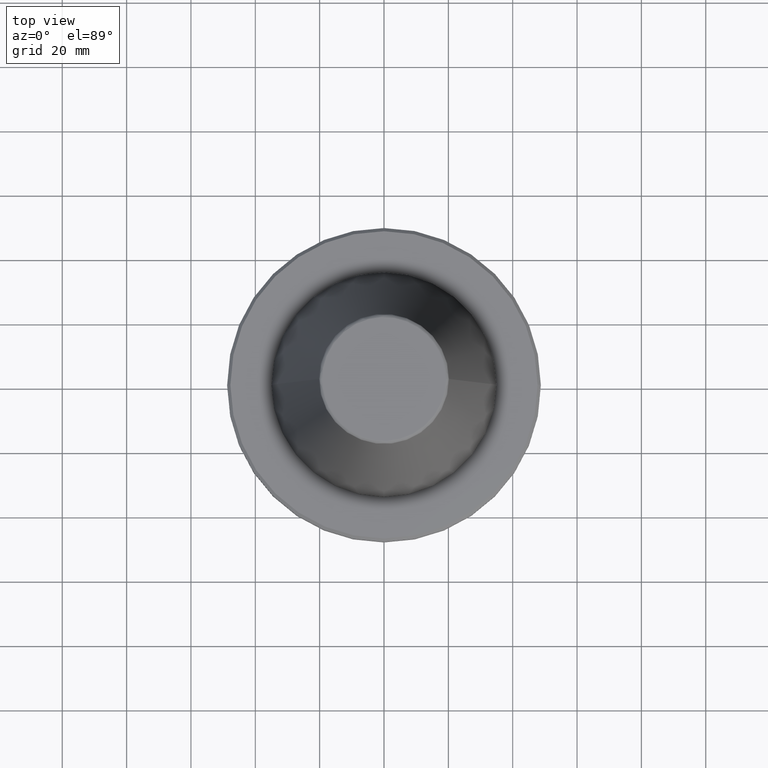
[diagram: clean part render]
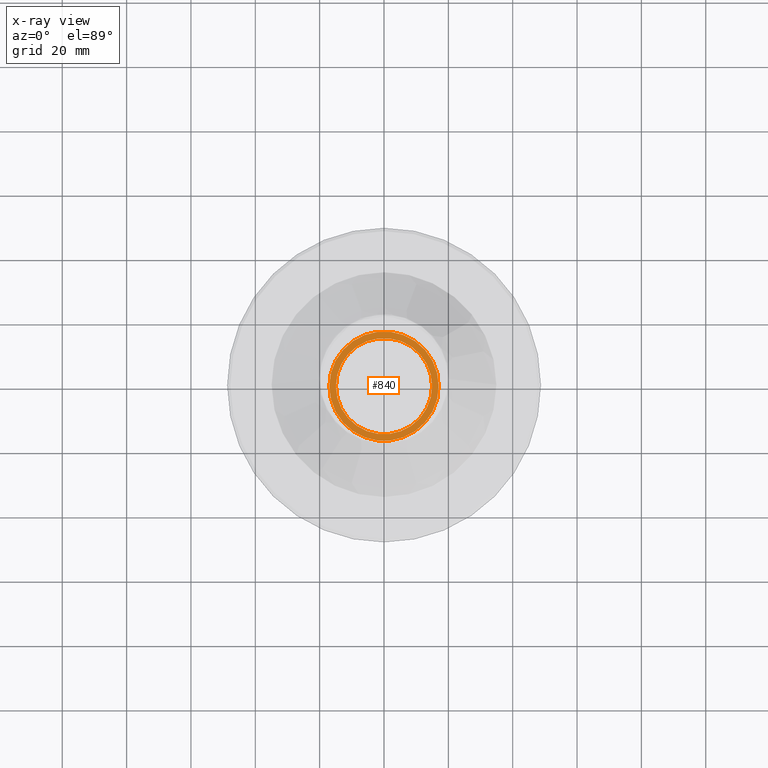
[diagram: x-ray — body ghosted, one internal face saturated and labeled with its STEP entity id]
A machine part, top view, then the same camera in x-ray: the body is ghosted and one INTERNAL B-rep face — a face not visible from any outside direction — is saturated and labeled: STEP entity #840.
In plain terms, the highlighted planar face has unit normal (0, 0, -1).
Its self-contained STEP definition (entity closure, byte-faithful):
#33 = FACE_OUTER_BOUND ( 'NONE', #1835, .T. ) ;
#85 = EDGE_LOOP ( 'NONE', ( #110, #1471 ) ) ;
#92 = EDGE_CURVE ( 'NONE', #2102, #376, #1086, .T. ) ;
#110 = ORIENTED_EDGE ( 'NONE', *, *, #292, .T. ) ;
#143 = CARTESIAN_POINT ( 'NONE',  ( -17.00000000000000000, 2.081899558550500300E-015, -28.40000000000001300 ) ) ;
#292 = EDGE_CURVE ( 'NONE', #1883, #334, #2058, .T. ) ;
#334 = VERTEX_POINT ( 'NONE', #1514 ) ;
#376 = VERTEX_POINT ( 'NONE', #2393 ) ;
#388 = EDGE_CURVE ( 'NONE', #334, #1883, #941, .T. ) ;
#404 = ORIENTED_EDGE ( 'NONE', *, *, #530, .F. ) ;
#476 = CARTESIAN_POINT ( 'NONE',  ( 14.94999999999999600, 0.0000000000000000000, -28.40000000000001300 ) ) ;
#530 = EDGE_CURVE ( 'NONE', #376, #2102, #2494, .T. ) ;
#688 = FACE_BOUND ( 'NONE', #85, .T. ) ;
#717 = CARTESIAN_POINT ( 'NONE',  ( 0.0000000000000000000, 0.0000000000000000000, -28.40000000000001300 ) ) ;
#748 = DIRECTION ( 'NONE',  ( 1.000000000000000000, 0.0000000000000000000, 0.0000000000000000000 ) ) ;
#750 = AXIS2_PLACEMENT_3D ( 'NONE', #2298, #1060, #1043 ) ;
#753 = DIRECTION ( 'NONE',  ( 0.0000000000000000000, 0.0000000000000000000, 1.000000000000000000 ) ) ;
#840 = ADVANCED_FACE ( 'NONE', ( #33, #688 ), #2434, .T. ) ;
#941 = CIRCLE ( 'NONE', #2290, 14.94999999999999600 ) ;
#987 = DIRECTION ( 'NONE',  ( 0.0000000000000000000, 0.0000000000000000000, 1.000000000000000000 ) ) ;
#996 = DIRECTION ( 'NONE',  ( 1.000000000000000000, 0.0000000000000000000, 0.0000000000000000000 ) ) ;
#1033 = CARTESIAN_POINT ( 'NONE',  ( 0.0000000000000000000, 0.0000000000000000000, -28.40000000000001300 ) ) ;
#1043 = DIRECTION ( 'NONE',  ( 1.000000000000000000, 0.0000000000000000000, 0.0000000000000000000 ) ) ;
#1060 = DIRECTION ( 'NONE',  ( 0.0000000000000000000, 0.0000000000000000000, 1.000000000000000000 ) ) ;
#1084 = AXIS2_PLACEMENT_3D ( 'NONE', #1718, #2419, #2410 ) ;
#1086 = CIRCLE ( 'NONE', #1246, 17.00000000000000000 ) ;
#1246 = AXIS2_PLACEMENT_3D ( 'NONE', #1033, #987, #996 ) ;
#1412 = DIRECTION ( 'NONE',  ( 1.000000000000000000, 0.0000000000000000000, 0.0000000000000000000 ) ) ;
#1443 = CARTESIAN_POINT ( 'NONE',  ( 0.0000000000000000000, 0.0000000000000000000, -28.40000000000001300 ) ) ;
#1471 = ORIENTED_EDGE ( 'NONE', *, *, #388, .T. ) ;
#1514 = CARTESIAN_POINT ( 'NONE',  ( -14.94999999999999600, 1.830846964725292900E-015, -28.40000000000001300 ) ) ;
#1561 = DIRECTION ( 'NONE',  ( 0.0000000000000000000, 0.0000000000000000000, 1.000000000000000000 ) ) ;
#1718 = CARTESIAN_POINT ( 'NONE',  ( 0.0000000000000000000, -17.00000000000000000, -28.40000000000001300 ) ) ;
#1835 = EDGE_LOOP ( 'NONE', ( #404, #2019 ) ) ;
#1883 = VERTEX_POINT ( 'NONE', #476 ) ;
#2019 = ORIENTED_EDGE ( 'NONE', *, *, #92, .F. ) ;
#2058 = CIRCLE ( 'NONE', #2309, 14.94999999999999600 ) ;
#2102 = VERTEX_POINT ( 'NONE', #143 ) ;
#2290 = AXIS2_PLACEMENT_3D ( 'NONE', #717, #753, #748 ) ;
#2298 = CARTESIAN_POINT ( 'NONE',  ( 0.0000000000000000000, 0.0000000000000000000, -28.40000000000001300 ) ) ;
#2309 = AXIS2_PLACEMENT_3D ( 'NONE', #1443, #1561, #1412 ) ;
#2393 = CARTESIAN_POINT ( 'NONE',  ( 17.00000000000000000, 0.0000000000000000000, -28.40000000000001300 ) ) ;
#2410 = DIRECTION ( 'NONE',  ( -1.000000000000000000, 0.0000000000000000000, -0.0000000000000000000 ) ) ;
#2419 = DIRECTION ( 'NONE',  ( 0.0000000000000000000, 0.0000000000000000000, -1.000000000000000000 ) ) ;
#2434 = PLANE ( 'NONE',  #1084 ) ;
#2494 = CIRCLE ( 'NONE', #750, 17.00000000000000000 ) ;